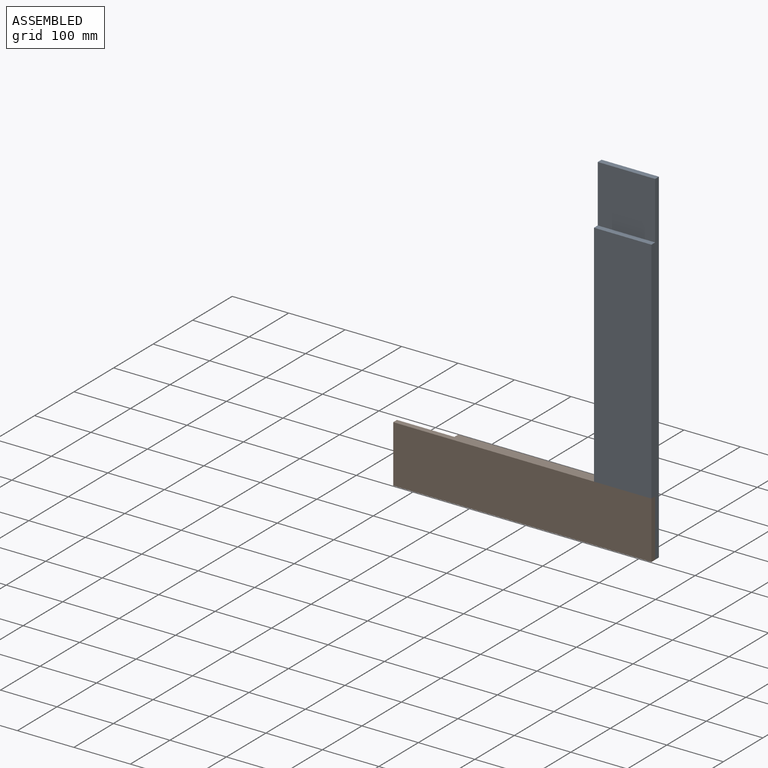
[diagram: assembled view]
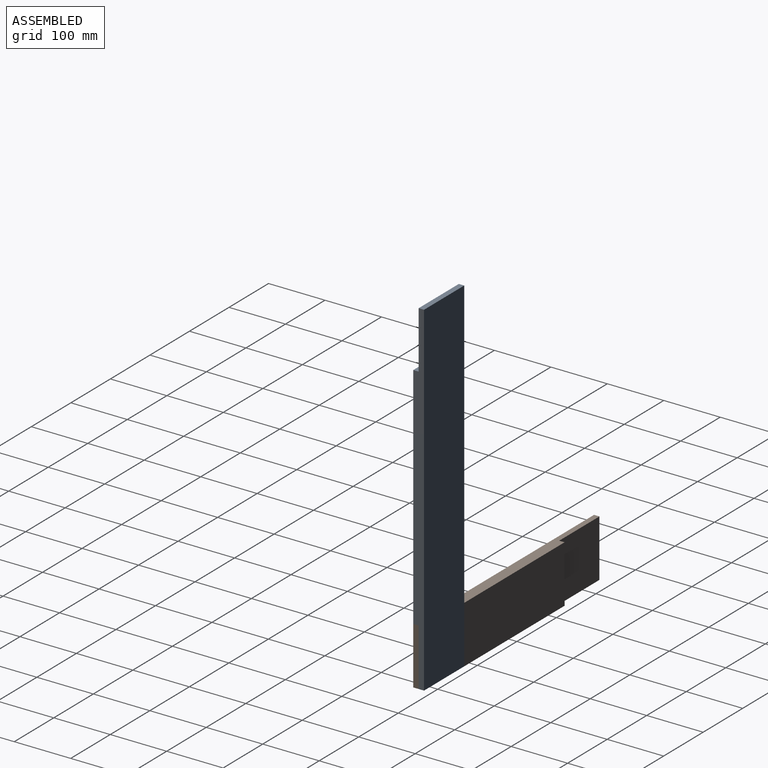
[diagram: assembled view, second angle]
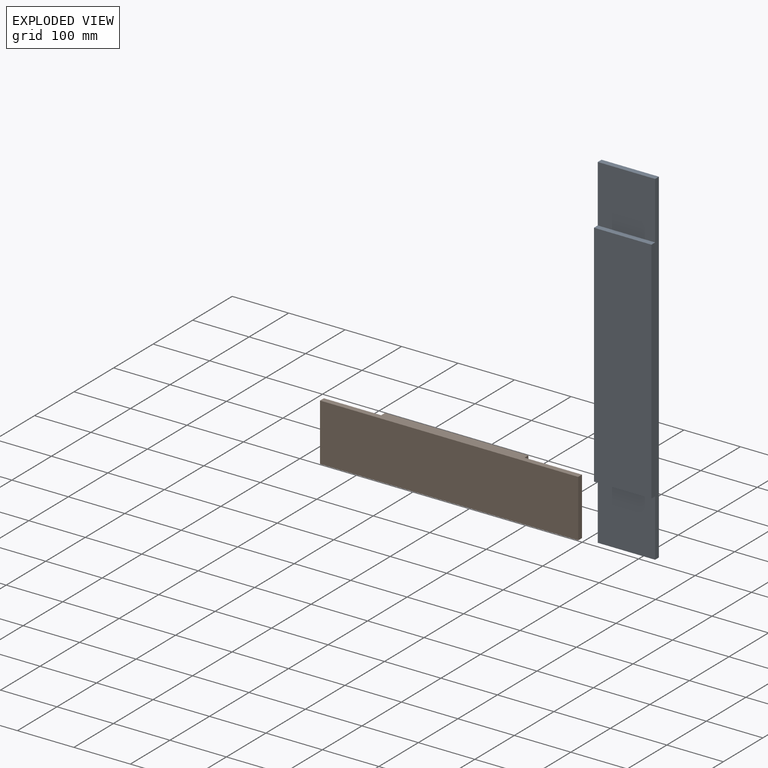
[diagram: exploded view]
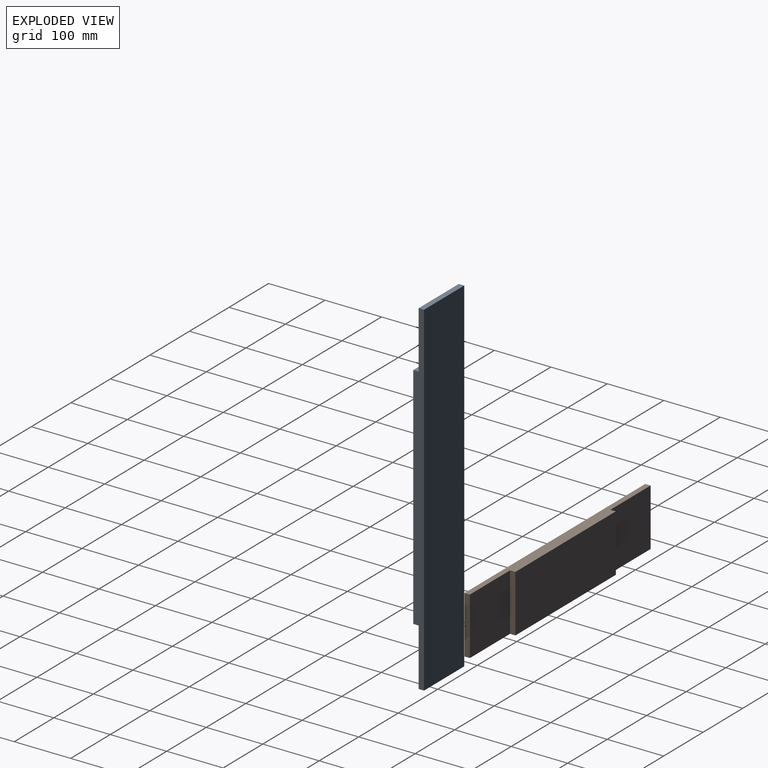
[diagram: exploded view, second angle]
ASSEMBLY  parts=2 mates=3
PART A: 10 faces, bbox 609.6x19.1x101.6 mm
  f0: plane 101.6x9.53mm, normal (1,0,0), area 967.7mm2, adj f2,f4,f5,f9
  f1: plane 406.4x101.6mm, normal (0,1,0), area 41290.2mm2, adj f2,f4,f6,f8
  f2: plane 609.6x19.05mm, normal (0,0,1), area 9677.4mm2, adj f0,f1,f3,f5,f6,f7,f8,f9
  f3: plane 101.6x9.53mm, normal (-1,0,0), area 967.7mm2, adj f2,f4,f5,f7
  f4: plane 609.6x19.05mm, normal (0,0,-1), area 9677.4mm2, adj f0,f1,f3,f5,f6,f7,f8,f9
  f5: plane 609.6x101.6mm, normal (0,-1,0), area 61935.4mm2, adj f0,f2,f3,f4
  f6: plane 101.6x9.53mm, normal (-1,0,0), area 967.7mm2, adj f1,f2,f4,f7
  f7: plane 101.6x101.6mm, normal (0,1,0), area 10322.6mm2, adj f2,f3,f4,f6
  f8: plane 101.6x9.53mm, normal (1,0,0), area 967.7mm2, adj f1,f2,f4,f9
  f9: plane 101.6x101.6mm, normal (0,1,0), area 10322.6mm2, adj f0,f2,f4,f8
PART B: 10 faces, bbox 457.2x19.1x101.6 mm
  f0: plane 101.6x9.53mm, normal (1,0,0), area 967.7mm2, adj f2,f4,f5,f9
  f1: plane 254x101.6mm, normal (0,1,0), area 25806.4mm2, adj f2,f4,f6,f8
  f2: plane 457.2x19.05mm, normal (0,0,1), area 6774.2mm2, adj f0,f1,f3,f5,f6,f7,f8,f9
  f3: plane 101.6x9.53mm, normal (-1,0,0), area 967.7mm2, adj f2,f4,f5,f7
  f4: plane 457.2x19.05mm, normal (0,0,-1), area 6774.2mm2, adj f0,f1,f3,f5,f6,f7,f8,f9
  f5: plane 457.2x101.6mm, normal (0,-1,0), area 46451.5mm2, adj f0,f2,f3,f4
  f6: plane 101.6x9.53mm, normal (-1,0,0), area 967.7mm2, adj f1,f2,f4,f7
  f7: plane 101.6x101.6mm, normal (0,1,0), area 10322.6mm2, adj f2,f3,f4,f6
  f8: plane 101.6x9.53mm, normal (1,0,0), area 967.7mm2, adj f1,f2,f4,f9
  f9: plane 101.6x101.6mm, normal (0,1,0), area 10322.6mm2, adj f0,f2,f4,f8
PLACE A rot(axis=(0.71,0,-0.71),180deg) t=(284.7,91.04,185.13)mm
PLACE B t=(106.9,91.04,-68.87)mm fixed
MATE planar A.f4 <-> B.f0  axis (1,0,0) through (335.5,91.99,185.13)mm
MATE planar A.f9 <-> B.f9  axis (0,-1,0) through (284.7,91.04,-68.87)mm
MATE planar B.f2 <-> A.f8  axis (0,0,1) through (106.9,89.68,-18.07)mm
